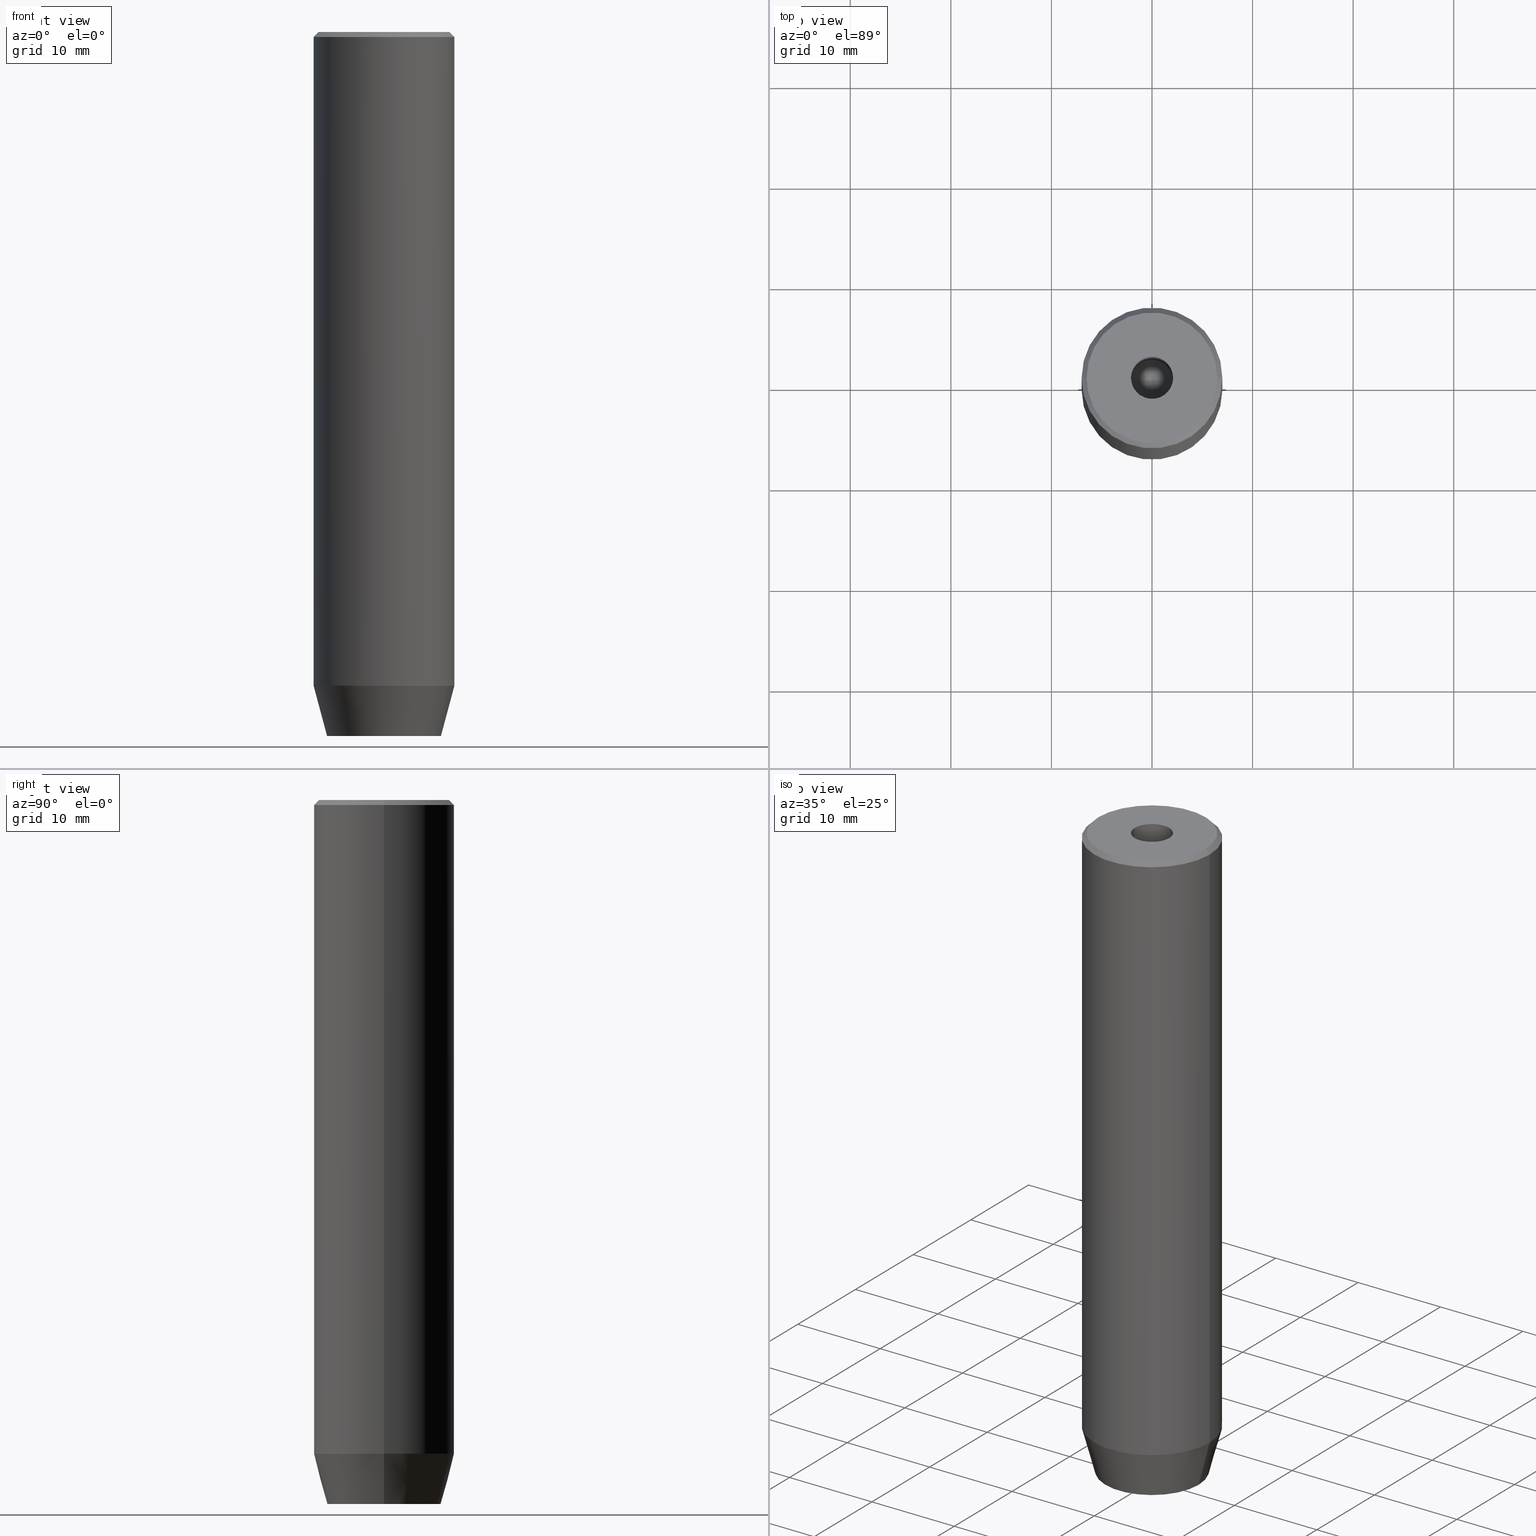
[diagram: canonical four-view strip — front | top / right | iso, engineering-drawing reading convention]
A machine part, canonical four-view strip (front | top / right | iso — engineering-drawing reading convention). The complete STEP part file that produces these views, byte-faithful:
ISO-10303-21;
HEADER;
FILE_DESCRIPTION (( 'STEP AP203' ),
    '1' );
FILE_NAME ('c9f8.STEP',
    '2024-01-02T21:54:03',
    ( '' ),
    ( '' ),
    'SwSTEP 2.0',
    'SolidWorks 2019',
    '' );
FILE_SCHEMA (( 'CONFIG_CONTROL_DESIGN' ));
ENDSEC;

DATA;
#1 = VECTOR ( 'NONE', #399, 1000.000000000000000 ) ;
#2 = COORDINATED_UNIVERSAL_TIME_OFFSET ( 1, 0, .AHEAD. ) ;
#3 = ORIENTED_EDGE ( 'NONE', *, *, #412, .F. ) ;
#4 = CARTESIAN_POINT ( 'NONE',  ( -2.099999999999996980, 2.571758278209438013E-16, -15.00000000000000000 ) ) ;
#5 = EDGE_LOOP ( 'NONE', ( #406, #281 ) ) ;
#6 = APPROVAL_STATUS ( 'not_yet_approved' ) ;
#7 = CARTESIAN_POINT ( 'NONE',  ( -6.500000000000012434, 0.000000000000000000, 0.000000000000000000 ) ) ;
#8 = ORIENTED_EDGE ( 'NONE', *, *, #316, .F. ) ;
#9 = DIRECTION ( 'NONE',  ( 0.000000000000000000, 0.000000000000000000, 1.000000000000000000 ) ) ;
#10 = EDGE_CURVE ( 'NONE', #421, #469, #246, .T. ) ;
#11 = ORIENTED_EDGE ( 'NONE', *, *, #283, .F. ) ;
#12 = VECTOR ( 'NONE', #81, 1000.000000000000000 ) ;
#13 = DIRECTION ( 'NONE',  ( -0.8571673007021113344, 1.049727191138617463E-16, 0.5150380749100558209 ) ) ;
#14 = DIRECTION ( 'NONE',  ( 0.000000000000000000, 0.000000000000000000, -1.000000000000000000 ) ) ;
#15 = DATE_AND_TIME ( #285, #493 ) ;
#16 = ORIENTED_EDGE ( 'NONE', *, *, #352, .T. ) ;
#17 = PRODUCT_RELATED_PRODUCT_CATEGORY ( 'detail', '', ( #527 ) ) ;
#18 = CARTESIAN_POINT ( 'NONE',  ( 0.000000000000000000, 0.000000000000000000, 0.000000000000000000 ) ) ;
#19 = VERTEX_POINT ( 'NONE', #219 ) ;
#20 = CARTESIAN_POINT ( 'NONE',  ( -1.249999999999999556, -2.165063509461096825, -67.20000000000000284 ) ) ;
#21 = EDGE_CURVE ( 'NONE', #330, #90, #259, .T. ) ;
#22 = VERTEX_POINT ( 'NONE', #397 ) ;
#23 = LINE ( 'NONE', #250, #503 ) ;
#24 = CIRCLE ( 'NONE', #50, 7.000000000000000000 ) ;
#25 = APPROVAL_PERSON_ORGANIZATION ( #97, #76, #321 ) ;
#26 = DATE_AND_TIME ( #213, #235 ) ;
#27 = LINE ( 'NONE', #518, #205 ) ;
#28 = CARTESIAN_POINT ( 'NONE',  ( -2.500000000000000444, 1.443375672974064772, -67.20000000000000284 ) ) ;
#29 = DIRECTION ( 'NONE',  ( -0.000000000000000000, -0.000000000000000000, 1.000000000000000000 ) ) ;
#30 = EDGE_CURVE ( 'NONE', #95, #49, #307, .T. ) ;
#31 = LINE ( 'NONE', #434, #119 ) ;
#32 = FACE_OUTER_BOUND ( 'NONE', #547, .T. ) ;
#33 = CIRCLE ( 'NONE', #314, 7.000000000000000000 ) ;
#34 = DIRECTION ( 'NONE',  ( -0.2588190451025211836, 3.169619151431770488E-17, 0.9659258262890680902 ) ) ;
#35 = CC_DESIGN_PERSON_AND_ORGANIZATION_ASSIGNMENT ( #376, #557, ( #195 ) ) ;
#36 = VERTEX_POINT ( 'NONE', #242 ) ;
#37 = PLANE ( 'NONE',  #243 ) ;
#38 = EDGE_CURVE ( 'NONE', #54, #403, #334, .T. ) ;
#39 = LINE ( 'NONE', #574, #88 ) ;
#40 = AXIS2_PLACEMENT_3D ( 'NONE', #231, #268, #176 ) ;
#41 = CC_DESIGN_APPROVAL ( #76, ( #195 ) ) ;
#42 = DIRECTION ( 'NONE',  ( 0.000000000000000000, 0.000000000000000000, -1.000000000000000000 ) ) ;
#43 = DIRECTION ( 'NONE',  ( 1.000000000000000000, 0.000000000000000000, 0.000000000000000000 ) ) ;
#44 = EDGE_CURVE ( 'NONE', #421, #151, #587, .T. ) ;
#45 = PLANE ( 'NONE',  #233 ) ;
#46 = VERTEX_POINT ( 'NONE', #575 ) ;
#47 = DIRECTION ( 'NONE',  ( 1.000000000000000000, 0.000000000000000000, 0.000000000000000000 ) ) ;
#48 = CARTESIAN_POINT ( 'NONE',  ( 0.000000000000000000, 0.000000000000000000, 0.000000000000000000 ) ) ;
#49 = VERTEX_POINT ( 'NONE', #423 ) ;
#50 = AXIS2_PLACEMENT_3D ( 'NONE', #404, #486, #43 ) ;
#51 = LOCAL_TIME ( 22, 54, 3.000000000000000000, #515 ) ;
#52 = VERTEX_POINT ( 'NONE', #508 ) ;
#53 = ADVANCED_FACE ( 'NONE', ( #126 ), #105, .F. ) ;
#54 = VERTEX_POINT ( 'NONE', #484 ) ;
#55 = PERSON_AND_ORGANIZATION_ROLE ( 'creator' ) ;
#56 = ORIENTED_EDGE ( 'NONE', *, *, #216, .F. ) ;
#57 = LINE ( 'NONE', #292, #194 ) ;
#58 = DIRECTION ( 'NONE',  ( -0.000000000000000000, 0.000000000000000000, -1.000000000000000000 ) ) ;
#59 = APPROVAL_STATUS ( 'not_yet_approved' ) ;
#60 = ORIENTED_EDGE ( 'NONE', *, *, #91, .F. ) ;
#61 = AXIS2_PLACEMENT_3D ( 'NONE', #171, #211, #257 ) ;
#62 = ORIENTED_EDGE ( 'NONE', *, *, #152, .T. ) ;
#63 = MANIFOLD_SOLID_BREP ( 'Vrt�k z�vitn�ku pro M5 z�vit1', #214 ) ;
#64 = PERSON_AND_ORGANIZATION ( #324, #300 ) ;
#65 = ORIENTED_EDGE ( 'NONE', *, *, #398, .F. ) ;
#66 = ADVANCED_FACE ( 'NONE', ( #288 ), #201, .F. ) ;
#67 = EDGE_LOOP ( 'NONE', ( #340, #322 ) ) ;
#68 = CARTESIAN_POINT ( 'NONE',  ( 0.000000000000000000, 0.000000000000000000, -65.00000000000000000 ) ) ;
#69 = LINE ( 'NONE', #345, #361 ) ;
#70 = AXIS2_PLACEMENT_3D ( 'NONE', #175, #301, #258 ) ;
#71 = DIRECTION ( 'NONE',  ( -0.000000000000000000, -0.000000000000000000, 1.000000000000000000 ) ) ;
#72 = DIRECTION ( 'NONE',  ( 1.000000000000000000, 0.000000000000000000, 0.000000000000000000 ) ) ;
#73 = ADVANCED_FACE ( 'NONE', ( #120, #468 ), #380, .T. ) ;
#74 = CARTESIAN_POINT ( 'NONE',  ( -1.084202172485504434E-16, 2.886751345948129543, -67.20000000000000284 ) ) ;
#75 = DIRECTION ( 'NONE',  ( -0.000000000000000000, -0.000000000000000000, 1.000000000000000000 ) ) ;
#76 = APPROVAL ( #59, 'NEUR�EN�' ) ;
#77 = DIRECTION ( 'NONE',  ( 1.000000000000000000, 0.000000000000000000, 0.000000000000000000 ) ) ;
#78 = CARTESIAN_POINT ( 'NONE',  ( -6.500000000000012434, 0.000000000000000000, 0.000000000000000000 ) ) ;
#79 = AXIS2_PLACEMENT_3D ( 'NONE', #18, #532, #390 ) ;
#80 = CONICAL_SURFACE ( 'NONE', #61, 2.099999999999996980, 1.029744258676652535 ) ;
#81 = DIRECTION ( 'NONE',  ( 0.8660254037844385966, -0.5000000000000001110, 0.000000000000000000 ) ) ;
#82 = CC_DESIGN_PERSON_AND_ORGANIZATION_ASSIGNMENT ( #144, #55, ( #405 ) ) ;
#83 = DIRECTION ( 'NONE',  ( 0.2588190451025211836, 0.000000000000000000, 0.9659258262890680902 ) ) ;
#84 = CARTESIAN_POINT ( 'NONE',  ( 2.099999999999996980, 0.000000000000000000, -15.00000000000000000 ) ) ;
#85 = CARTESIAN_POINT ( 'NONE',  ( -1.250000000000000444, 2.165063509461097269, -67.20000000000000284 ) ) ;
#86 = CARTESIAN_POINT ( 'NONE',  ( 0.000000000000000000, 0.000000000000000000, -65.00000000000000000 ) ) ;
#87 = VECTOR ( 'NONE', #13, 1000.000000000000000 ) ;
#88 = VECTOR ( 'NONE', #221, 1000.000000000000000 ) ;
#89 = DIRECTION ( 'NONE',  ( -0.000000000000000000, -0.000000000000000000, 1.000000000000000000 ) ) ;
#90 = VERTEX_POINT ( 'NONE', #168 ) ;
#91 = EDGE_CURVE ( 'NONE', #157, #234, #526, .T. ) ;
#92 = FACE_OUTER_BOUND ( 'NONE', #93, .T. ) ;
#93 = EDGE_LOOP ( 'NONE', ( #464, #284, #560, #338 ) ) ;
#94 = DIRECTION ( 'NONE',  ( 1.000000000000000000, 0.000000000000000000, 0.000000000000000000 ) ) ;
#95 = VERTEX_POINT ( 'NONE', #129 ) ;
#96 = AXIS2_PLACEMENT_3D ( 'NONE', #400, #313, #47 ) ;
#97 = PERSON_AND_ORGANIZATION ( #324, #300 ) ;
#98 = ADVANCED_FACE ( 'NONE', ( #32 ), #217, .T. ) ;
#99 = ORIENTED_EDGE ( 'NONE', *, *, #498, .T. ) ;
#100 = APPROVAL_DATE_TIME ( #546, #173 ) ;
#101 = CARTESIAN_POINT ( 'NONE',  ( 0.000000000000000000, 0.000000000000000000, -65.00000000000000000 ) ) ;
#102 = ORIENTED_EDGE ( 'NONE', *, *, #555, .T. ) ;
#103 = APPLICATION_PROTOCOL_DEFINITION ( 'international standard', 'config_control_design', 1994, #490 ) ;
#104 = VERTEX_POINT ( 'NONE', #349 ) ;
#105 = CYLINDRICAL_SURFACE ( 'NONE', #79, 2.099999999999997868 ) ;
#106 = EDGE_CURVE ( 'NONE', #190, #403, #530, .T. ) ;
#107 = PERSON_AND_ORGANIZATION ( #324, #300 ) ;
#108 = VECTOR ( 'NONE', #343, 1000.000000000000000 ) ;
#109 = ORIENTED_EDGE ( 'NONE', *, *, #337, .T. ) ;
#110 = CONICAL_SURFACE ( 'NONE', #121, 7.000000000000000000, 0.2617993877991499074 ) ;
#111 = DIRECTION ( 'NONE',  ( 0.000000000000000000, 0.000000000000000000, 1.000000000000000000 ) ) ;
#112 = APPROVAL_PERSON_ORGANIZATION ( #141, #173, #150 ) ;
#113 = SHAPE_DEFINITION_REPRESENTATION ( #165, #353 ) ;
#114 = ORIENTED_EDGE ( 'NONE', *, *, #106, .F. ) ;
#115 = FACE_OUTER_BOUND ( 'NONE', #143, .T. ) ;
#116 = ORIENTED_EDGE ( 'NONE', *, *, #329, .T. ) ;
#117 = CARTESIAN_POINT ( 'NONE',  ( -1.084202172485504434E-16, 2.886751345948129543, -67.20000000000000284 ) ) ;
#118 = FACE_OUTER_BOUND ( 'NONE', #385, .T. ) ;
#119 = VECTOR ( 'NONE', #34, 1000.000000000000114 ) ;
#120 = FACE_BOUND ( 'NONE', #381, .T. ) ;
#121 = AXIS2_PLACEMENT_3D ( 'NONE', #68, #430, #538 ) ;
#122 = ADVANCED_FACE ( 'NONE', ( #351 ), #45, .F. ) ;
#123 = LINE ( 'NONE', #164, #445 ) ;
#124 = CARTESIAN_POINT ( 'NONE',  ( 7.000000000000000000, 0.000000000000000000, 0.000000000000000000 ) ) ;
#125 = DIRECTION ( 'NONE',  ( 1.000000000000000000, 0.000000000000000000, 0.000000000000000000 ) ) ;
#126 = FACE_OUTER_BOUND ( 'NONE', #240, .T. ) ;
#127 = CC_DESIGN_PERSON_AND_ORGANIZATION_ASSIGNMENT ( #107, #548, ( #527 ) ) ;
#128 = DIRECTION ( 'NONE',  ( -0.8660254037844387076, -0.5000000000000001110, 0.000000000000000000 ) ) ;
#129 = CARTESIAN_POINT ( 'NONE',  ( -2.500000000000000444, -1.443375672974064328, -67.20000000000000284 ) ) ;
#130 = AXIS2_PLACEMENT_3D ( 'NONE', #302, #218, #125 ) ;
#131 = CIRCLE ( 'NONE', #524, 2.099999999999998757 ) ;
#132 = CYLINDRICAL_SURFACE ( 'NONE', #550, 7.000000000000000000 ) ;
#133 = CARTESIAN_POINT ( 'NONE',  ( 0.000000000000000000, 0.000000000000000000, 0.000000000000000000 ) ) ;
#134 = DIRECTION ( 'NONE',  ( 0.000000000000000000, -1.000000000000000000, 0.000000000000000000 ) ) ;
#135 = EDGE_CURVE ( 'NONE', #330, #157, #265, .T. ) ;
#136 = AXIS2_PLACEMENT_3D ( 'NONE', #203, #414, #287 ) ;
#137 = ORIENTED_EDGE ( 'NONE', *, *, #555, .F. ) ;
#138 = SECURITY_CLASSIFICATION ( '', '', #154 ) ;
#139 = FACE_OUTER_BOUND ( 'NONE', #395, .T. ) ;
#140 = ORIENTED_EDGE ( 'NONE', *, *, #528, .T. ) ;
#141 = PERSON_AND_ORGANIZATION ( #324, #300 ) ;
#142 = DIRECTION ( 'NONE',  ( -0.000000000000000000, -0.000000000000000000, 1.000000000000000000 ) ) ;
#143 = EDGE_LOOP ( 'NONE', ( #364, #212, #202, #140 ) ) ;
#144 = PERSON_AND_ORGANIZATION ( #324, #300 ) ;
#145 = EDGE_CURVE ( 'NONE', #52, #190, #455, .T. ) ;
#146 = VERTEX_POINT ( 'NONE', #544 ) ;
#147 = FACE_OUTER_BOUND ( 'NONE', #237, .T. ) ;
#148 = PLANE ( 'NONE',  #571 ) ;
#149 = ORIENTED_EDGE ( 'NONE', *, *, #44, .T. ) ;
#150 = APPROVAL_ROLE ( '' ) ;
#151 = VERTEX_POINT ( 'NONE', #263 ) ;
#152 = EDGE_CURVE ( 'NONE', #104, #303, #441, .T. ) ;
#153 = VERTEX_POINT ( 'NONE', #333 ) ;
#154 = SECURITY_CLASSIFICATION_LEVEL ( 'unclassified' ) ;
#155 = ORIENTED_EDGE ( 'NONE', *, *, #225, .T. ) ;
#156 = CARTESIAN_POINT ( 'NONE',  ( 2.099999999999997868, 0.000000000000000000, 0.000000000000000000 ) ) ;
#157 = VERTEX_POINT ( 'NONE', #378 ) ;
#158 = VECTOR ( 'NONE', #432, 1000.000000000000114 ) ;
#159 = DIRECTION ( 'NONE',  ( 0.000000000000000000, 0.000000000000000000, -1.000000000000000000 ) ) ;
#160 = CONICAL_SURFACE ( 'NONE', #224, 6.500000000000012434, 0.7853981633974447263 ) ;
#161 = ORIENTED_EDGE ( 'NONE', *, *, #216, .T. ) ;
#162 = FACE_OUTER_BOUND ( 'NONE', #196, .T. ) ;
#163 = EDGE_CURVE ( 'NONE', #19, #146, #57, .T. ) ;
#164 = CARTESIAN_POINT ( 'NONE',  ( -2.500000000000000444, 0.000000000000000000, -67.20000000000000284 ) ) ;
#165 = PRODUCT_DEFINITION_SHAPE ( 'NONE', 'NONE',  #405 ) ;
#166 = CARTESIAN_POINT ( 'NONE',  ( 5.660254037844382857, 0.000000000000000000, -70.00000000000000000 ) ) ;
#167 = VECTOR ( 'NONE', #387, 1000.000000000000000 ) ;
#168 = CARTESIAN_POINT ( 'NONE',  ( -5.660254037844382857, 7.752169791919238770E-16, -70.00000000000000000 ) ) ;
#169 = LOCAL_TIME ( 22, 54, 3.000000000000000000, #2 ) ;
#170 = APPROVAL_DATE_TIME ( #391, #442 ) ;
#171 = CARTESIAN_POINT ( 'NONE',  ( 0.000000000000000000, 0.000000000000000000, -15.00000000000000000 ) ) ;
#172 = DIRECTION ( 'NONE',  ( -1.000000000000000000, 0.000000000000000000, -0.000000000000000000 ) ) ;
#173 = APPROVAL ( #6, 'NEUR�EN�' ) ;
#174 = LINE ( 'NONE', #350, #551 ) ;
#175 = CARTESIAN_POINT ( 'NONE',  ( 0.000000000000000000, 5.660254037844382857, -70.00000000000000000 ) ) ;
#176 = DIRECTION ( 'NONE',  ( -0.8660254037844385966, 0.5000000000000001110, 0.000000000000000000 ) ) ;
#177 = AXIS2_PLACEMENT_3D ( 'NONE', #48, #142, #312 ) ;
#178 = CARTESIAN_POINT ( 'NONE',  ( 2.099999999999998757, 0.000000000000000000, -1.990051048614449116E-16 ) ) ;
#179 = DIRECTION ( 'NONE',  ( 1.000000000000000000, 0.000000000000000000, 0.000000000000000000 ) ) ;
#180 = ADVANCED_FACE ( 'NONE', ( #369 ), #502, .F. ) ;
#181 = EDGE_LOOP ( 'NONE', ( #359, #450, #56, #193 ) ) ;
#182 = CARTESIAN_POINT ( 'NONE',  ( 0.000000000000000000, 0.000000000000000000, 0.000000000000000000 ) ) ;
#183 = UNCERTAINTY_MEASURE_WITH_UNIT (LENGTH_MEASURE( 1.000000000000000082E-05 ), #509, 'distance_accuracy_value', 'NONE');
#184 = CARTESIAN_POINT ( 'NONE',  ( 7.000000000000000000, 0.000000000000000000, -65.00000000000000000 ) ) ;
#185 = AXIS2_PLACEMENT_3D ( 'NONE', #282, #328, #94 ) ;
#186 = ORIENTED_EDGE ( 'NONE', *, *, #30, .F. ) ;
#187 = ADVANCED_FACE ( 'NONE', ( #511 ), #401, .T. ) ;
#188 = ORIENTED_EDGE ( 'NONE', *, *, #44, .F. ) ;
#189 = CARTESIAN_POINT ( 'NONE',  ( -1.250000000000000444, 2.165063509461097269, -67.20000000000000284 ) ) ;
#190 = VERTEX_POINT ( 'NONE', #7 ) ;
#191 = DIRECTION ( 'NONE',  ( 0.000000000000000000, -1.000000000000000000, 0.000000000000000000 ) ) ;
#192 = FACE_OUTER_BOUND ( 'NONE', #539, .T. ) ;
#193 = ORIENTED_EDGE ( 'NONE', *, *, #135, .F. ) ;
#194 = VECTOR ( 'NONE', #558, 1000.000000000000000 ) ;
#195 = PRODUCT_DEFINITION_FORMATION_WITH_SPECIFIED_SOURCE ( 'LIBOVOLN�', '', #527, .NOT_KNOWN. ) ;
#196 = EDGE_LOOP ( 'NONE', ( #410, #279, #336, #114 ) ) ;
#197 = ORIENTED_EDGE ( 'NONE', *, *, #152, .F. ) ;
#198 = PERSON_AND_ORGANIZATION_ROLE ( 'creator' ) ;
#199 = ORIENTED_EDGE ( 'NONE', *, *, #337, .F. ) ;
#200 = ADVANCED_FACE ( 'NONE', ( #192 ), #466, .F. ) ;
#201 = PLANE ( 'NONE',  #325 ) ;
#202 = ORIENTED_EDGE ( 'NONE', *, *, #91, .T. ) ;
#203 = CARTESIAN_POINT ( 'NONE',  ( 0.000000000000000000, 0.000000000000000000, -65.00000000000000000 ) ) ;
#204 = ORIENTED_EDGE ( 'NONE', *, *, #456, .F. ) ;
#205 = VECTOR ( 'NONE', #483, 1000.000000000000114 ) ;
#206 = CYLINDRICAL_SURFACE ( 'NONE', #419, 7.000000000000000000 ) ;
#207 = ADVANCED_FACE ( 'NONE', ( #549 ), #148, .F. ) ;
#208 = CALENDAR_DATE ( 2024, 2, 1 ) ;
#209 = DIRECTION ( 'NONE',  ( -0.000000000000000000, -0.000000000000000000, 1.000000000000000000 ) ) ;
#210 = CC_DESIGN_PERSON_AND_ORGANIZATION_ASSIGNMENT ( #64, #198, ( #195 ) ) ;
#211 = DIRECTION ( 'NONE',  ( -0.000000000000000000, -0.000000000000000000, 1.000000000000000000 ) ) ;
#212 = ORIENTED_EDGE ( 'NONE', *, *, #412, .T. ) ;
#213 = CALENDAR_DATE ( 2024, 2, 1 ) ;
#214 = CLOSED_SHELL ( 'NONE', ( #271, #200, #244, #388, #422, #73, #475, #310, #187, #542, #585, #207, #180, #122, #66, #482, #98, #251, #53 ) ) ;
#215 = LINE ( 'NONE', #394, #167 ) ;
#216 = EDGE_CURVE ( 'NONE', #157, #54, #33, .T. ) ;
#217 = PLANE ( 'NONE',  #392 ) ;
#218 = DIRECTION ( 'NONE',  ( -0.000000000000000000, -0.000000000000000000, 1.000000000000000000 ) ) ;
#219 = CARTESIAN_POINT ( 'NONE',  ( 0.000000000000000000, -2.886751345948128211, -67.20000000000000284 ) ) ;
#220 = LINE ( 'NONE', #360, #522 ) ;
#221 = DIRECTION ( 'NONE',  ( -0.000000000000000000, -0.000000000000000000, -1.000000000000000000 ) ) ;
#222 = DIRECTION ( 'NONE',  ( 0.8660254037844385966, 0.5000000000000001110, 0.000000000000000000 ) ) ;
#223 = VECTOR ( 'NONE', #83, 1000.000000000000114 ) ;
#224 = AXIS2_PLACEMENT_3D ( 'NONE', #488, #42, #446 ) ;
#225 = EDGE_CURVE ( 'NONE', #46, #151, #418, .T. ) ;
#226 = CARTESIAN_POINT ( 'NONE',  ( -2.099999999999998757, 2.571758278209439985E-16, -1.990051048614449116E-16 ) ) ;
#227 = DESIGN_CONTEXT ( 'detailed design', #566, 'design' ) ;
#228 = ORIENTED_EDGE ( 'NONE', *, *, #316, .T. ) ;
#229 = LINE ( 'NONE', #541, #384 ) ;
#230 = ORIENTED_EDGE ( 'NONE', *, *, #347, .F. ) ;
#231 = CARTESIAN_POINT ( 'NONE',  ( 1.250000000000000222, 2.165063509461096825, -67.20000000000000284 ) ) ;
#232 = EDGE_CURVE ( 'NONE', #52, #234, #27, .T. ) ;
#233 = AXIS2_PLACEMENT_3D ( 'NONE', #584, #489, #319 ) ;
#234 = VERTEX_POINT ( 'NONE', #427 ) ;
#235 = LOCAL_TIME ( 22, 54, 3.000000000000000000, #481 ) ;
#236 = DIRECTION ( 'NONE',  ( 1.000000000000000000, 0.000000000000000000, 0.000000000000000000 ) ) ;
#237 = EDGE_LOOP ( 'NONE', ( #116, #8, #197, #586 ) ) ;
#238 = CARTESIAN_POINT ( 'NONE',  ( 0.000000000000000000, 0.000000000000000000, -1.990051048614449116E-16 ) ) ;
#239 = ORIENTED_EDGE ( 'NONE', *, *, #537, .T. ) ;
#240 = EDGE_LOOP ( 'NONE', ( #65, #188, #371, #480 ) ) ;
#241 = DIRECTION ( 'NONE',  ( 0.8660254037844387076, -0.4999999999999998890, 0.000000000000000000 ) ) ;
#242 = CARTESIAN_POINT ( 'NONE',  ( -2.500000000000000444, 1.443375672974064772, -70.00000000000000000 ) ) ;
#243 = AXIS2_PLACEMENT_3D ( 'NONE', #133, #443, #583 ) ;
#244 = ADVANCED_FACE ( 'NONE', ( #162 ), #447, .T. ) ;
#245 = ORIENTED_EDGE ( 'NONE', *, *, #498, .F. ) ;
#246 = LINE ( 'NONE', #156, #436 ) ;
#247 = ORIENTED_EDGE ( 'NONE', *, *, #448, .T. ) ;
#248 = PERSON_AND_ORGANIZATION_ROLE ( 'classification_officer' ) ;
#249 = ORIENTED_EDGE ( 'NONE', *, *, #456, .T. ) ;
#250 = CARTESIAN_POINT ( 'NONE',  ( -2.500000000000000444, 0.000000000000000000, -70.00000000000000000 ) ) ;
#251 = ADVANCED_FACE ( 'NONE', ( #342 ), #80, .F. ) ;
#252 = CIRCLE ( 'NONE', #561, 2.099999999999998757 ) ;
#253 = CARTESIAN_POINT ( 'NONE',  ( 0.000000000000000000, 0.000000000000000000, 0.000000000000000000 ) ) ;
#254 = LINE ( 'NONE', #520, #577 ) ;
#255 = DIRECTION ( 'NONE',  ( 1.000000000000000000, 0.000000000000000000, -0.000000000000000000 ) ) ;
#256 = EDGE_CURVE ( 'NONE', #190, #52, #261, .T. ) ;
#257 = DIRECTION ( 'NONE',  ( 1.000000000000000000, 0.000000000000000000, 0.000000000000000000 ) ) ;
#258 = DIRECTION ( 'NONE',  ( -1.000000000000000000, 0.000000000000000000, -0.000000000000000000 ) ) ;
#259 = CIRCLE ( 'NONE', #444, 5.660254037844382857 ) ;
#260 = CARTESIAN_POINT ( 'NONE',  ( -1.249999999999999556, -2.165063509461096825, -67.20000000000000284 ) ) ;
#261 = CIRCLE ( 'NONE', #130, 6.500000000000012434 ) ;
#262 = FACE_OUTER_BOUND ( 'NONE', #67, .T. ) ;
#263 = CARTESIAN_POINT ( 'NONE',  ( -2.099999999999996980, 2.571758278209438013E-16, -15.00000000000000000 ) ) ;
#264 = LINE ( 'NONE', #576, #533 ) ;
#265 = LINE ( 'NONE', #184, #223 ) ;
#266 = EDGE_CURVE ( 'NONE', #49, #36, #23, .T. ) ;
#267 = CARTESIAN_POINT ( 'NONE',  ( 0.000000000000000000, 0.000000000000000000, -0.4999999999999908962 ) ) ;
#268 = DIRECTION ( 'NONE',  ( 0.5000000000000001110, 0.8660254037844385966, -0.000000000000000000 ) ) ;
#269 = EDGE_LOOP ( 'NONE', ( #417, #186, #506, #374 ) ) ;
#270 = CARTESIAN_POINT ( 'NONE',  ( -7.000000000000000000, 8.572527594031473190E-16, -0.4999999999999908962 ) ) ;
#271 = ADVANCED_FACE ( 'NONE', ( #118 ), #305, .F. ) ;
#272 = ORIENTED_EDGE ( 'NONE', *, *, #431, .T. ) ;
#273 = DIRECTION ( 'NONE',  ( -0.000000000000000000, -0.000000000000000000, 1.000000000000000000 ) ) ;
#274 = CARTESIAN_POINT ( 'NONE',  ( -2.500000000000000444, 0.000000000000000000, -67.20000000000000284 ) ) ;
#275 = VECTOR ( 'NONE', #435, 1000.000000000000000 ) ;
#276 = ORIENTED_EDGE ( 'NONE', *, *, #294, .T. ) ;
#277 = CARTESIAN_POINT ( 'NONE',  ( 2.500000000000000000, 1.443375672974064328, -70.00000000000000000 ) ) ;
#278 = DIRECTION ( 'NONE',  ( -0.4999999999999998890, -0.8660254037844387076, 0.000000000000000000 ) ) ;
#279 = ORIENTED_EDGE ( 'NONE', *, *, #232, .T. ) ;
#280 = APPROVAL_DATE_TIME ( #15, #76 ) ;
#281 = ORIENTED_EDGE ( 'NONE', *, *, #438, .F. ) ;
#282 = CARTESIAN_POINT ( 'NONE',  ( 0.000000000000000000, 0.000000000000000000, -15.00000000000000000 ) ) ;
#283 = EDGE_CURVE ( 'NONE', #90, #54, #31, .T. ) ;
#284 = ORIENTED_EDGE ( 'NONE', *, *, #256, .F. ) ;
#285 = CALENDAR_DATE ( 2024, 2, 1 ) ;
#286 = ORIENTED_EDGE ( 'NONE', *, *, #304, .T. ) ;
#287 = DIRECTION ( 'NONE',  ( 1.000000000000000000, 0.000000000000000000, 0.000000000000000000 ) ) ;
#288 = FACE_OUTER_BOUND ( 'NONE', #505, .T. ) ;
#289 = VECTOR ( 'NONE', #439, 1000.000000000000114 ) ;
#290 = PERSON_AND_ORGANIZATION ( #324, #300 ) ;
#291 = VERTEX_POINT ( 'NONE', #567 ) ;
#292 = CARTESIAN_POINT ( 'NONE',  ( 0.000000000000000000, -2.886751345948128211, -67.20000000000000284 ) ) ;
#293 = ORIENTED_EDGE ( 'NONE', *, *, #491, .T. ) ;
#294 = EDGE_CURVE ( 'NONE', #95, #104, #123, .T. ) ;
#295 = DIRECTION ( 'NONE',  ( -0.000000000000000000, -0.000000000000000000, -1.000000000000000000 ) ) ;
#296 = ORIENTED_EDGE ( 'NONE', *, *, #517, .F. ) ;
#297 = LINE ( 'NONE', #28, #383 ) ;
#298 = AXIS2_PLACEMENT_3D ( 'NONE', #86, #440, #402 ) ;
#299 = DIRECTION ( 'NONE',  ( 1.000000000000000000, 0.000000000000000000, 0.000000000000000000 ) ) ;
#300 = ORGANIZATION ( 'NEUR�EN�', 'NEUR�EN�', '' ) ;
#301 = DIRECTION ( 'NONE',  ( 0.000000000000000000, 0.000000000000000000, -1.000000000000000000 ) ) ;
#302 = CARTESIAN_POINT ( 'NONE',  ( 0.000000000000000000, 0.000000000000000000, 0.000000000000000000 ) ) ;
#303 = VERTEX_POINT ( 'NONE', #74 ) ;
#304 = EDGE_CURVE ( 'NONE', #46, #421, #569, .T. ) ;
#305 = CYLINDRICAL_SURFACE ( 'NONE', #344, 2.099999999999997868 ) ;
#306 = CARTESIAN_POINT ( 'NONE',  ( 0.000000000000000000, 0.000000000000000000, -1.990051048614449116E-16 ) ) ;
#307 = LINE ( 'NONE', #478, #108 ) ;
#308 = CC_DESIGN_SECURITY_CLASSIFICATION ( #138, ( #195 ) ) ;
#309 = LINE ( 'NONE', #487, #12 ) ;
#310 = ADVANCED_FACE ( 'NONE', ( #115 ), #206, .T. ) ;
#311 = PLANE ( 'NONE',  #40 ) ;
#312 = DIRECTION ( 'NONE',  ( 1.000000000000000000, 0.000000000000000000, 0.000000000000000000 ) ) ;
#313 = DIRECTION ( 'NONE',  ( -0.000000000000000000, -0.000000000000000000, 1.000000000000000000 ) ) ;
#314 = AXIS2_PLACEMENT_3D ( 'NONE', #101, #382, #236 ) ;
#315 = CC_DESIGN_APPROVAL ( #442, ( #138 ) ) ;
#316 = EDGE_CURVE ( 'NONE', #303, #291, #339, .T. ) ;
#317 = EDGE_LOOP ( 'NONE', ( #11, #109, #424, #3 ) ) ;
#318 = DIRECTION ( 'NONE',  ( -0.000000000000000000, -0.000000000000000000, 1.000000000000000000 ) ) ;
#319 = DIRECTION ( 'NONE',  ( 0.8660254037844385966, 0.4999999999999999445, 0.000000000000000000 ) ) ;
#320 = ORIENTED_EDGE ( 'NONE', *, *, #30, .T. ) ;
#321 = APPROVAL_ROLE ( '' ) ;
#322 = ORIENTED_EDGE ( 'NONE', *, *, #145, .T. ) ;
#323 = CALENDAR_DATE ( 2024, 2, 1 ) ;
#324 = PERSON ( 'NEUR�EN�', 'NEUR�EN�', 'NEUR�EN�', ('NEUR�EN�'), ('NEUR�EN�'), ('NEUR�EN�') ) ;
#325 = AXIS2_PLACEMENT_3D ( 'NONE', #570, #255, #58 ) ;
#326 = VECTOR ( 'NONE', #222, 1000.000000000000000 ) ;
#327 = ORIENTED_EDGE ( 'NONE', *, *, #266, .F. ) ;
#328 = DIRECTION ( 'NONE',  ( -0.000000000000000000, -0.000000000000000000, 1.000000000000000000 ) ) ;
#329 = EDGE_CURVE ( 'NONE', #36, #291, #215, .T. ) ;
#330 = VERTEX_POINT ( 'NONE', #166 ) ;
#331 = COORDINATED_UNIVERSAL_TIME_OFFSET ( 1, 0, .AHEAD. ) ;
#332 = ORIENTED_EDGE ( 'NONE', *, *, #163, .F. ) ;
#333 = CARTESIAN_POINT ( 'NONE',  ( 2.500000000000000000, -1.443375672974064106, -70.00000000000000000 ) ) ;
#334 = LINE ( 'NONE', #559, #428 ) ;
#335 = PLANE ( 'NONE',  #457 ) ;
#336 = ORIENTED_EDGE ( 'NONE', *, *, #448, .F. ) ;
#337 = EDGE_CURVE ( 'NONE', #90, #330, #408, .T. ) ;
#338 = ORIENTED_EDGE ( 'NONE', *, *, #528, .F. ) ;
#339 = LINE ( 'NONE', #117, #370 ) ;
#340 = ORIENTED_EDGE ( 'NONE', *, *, #256, .T. ) ;
#341 = DIRECTION ( 'NONE',  ( 0.8571673007021113344, 0.000000000000000000, 0.5150380749100558209 ) ) ;
#342 = FACE_OUTER_BOUND ( 'NONE', #510, .T. ) ;
#343 = DIRECTION ( 'NONE',  ( -0.000000000000000000, -0.000000000000000000, -1.000000000000000000 ) ) ;
#344 = AXIS2_PLACEMENT_3D ( 'NONE', #479, #209, #396 ) ;
#345 = CARTESIAN_POINT ( 'NONE',  ( -1.249999999999999556, -2.165063509461096825, -70.00000000000000000 ) ) ;
#346 = DIRECTION ( 'NONE',  ( -0.000000000000000000, -0.000000000000000000, 1.000000000000000000 ) ) ;
#347 = EDGE_CURVE ( 'NONE', #303, #22, #254, .T. ) ;
#348 = DIRECTION ( 'NONE',  ( -0.000000000000000000, -0.000000000000000000, 1.000000000000000000 ) ) ;
#349 = CARTESIAN_POINT ( 'NONE',  ( -2.500000000000000444, 1.443375672974064772, -67.20000000000000284 ) ) ;
#350 = CARTESIAN_POINT ( 'NONE',  ( 2.500000000000000000, 0.000000000000000000, -67.20000000000000284 ) ) ;
#351 = FACE_OUTER_BOUND ( 'NONE', #366, .T. ) ;
#352 = EDGE_CURVE ( 'NONE', #19, #95, #514, .T. ) ;
#353 = ADVANCED_BREP_SHAPE_REPRESENTATION ( 'c9f8', ( #63, #393 ), #523 ) ;
#354 = DIRECTION ( 'NONE',  ( 1.000000000000000000, 0.000000000000000000, 0.000000000000000000 ) ) ;
#355 = CIRCLE ( 'NONE', #96, 2.099999999999996980 ) ;
#356 = APPROVAL_PERSON_ORGANIZATION ( #519, #442, #568 ) ;
#357 = DIRECTION ( 'NONE',  ( 0.000000000000000000, 0.000000000000000000, -1.000000000000000000 ) ) ;
#358 = CARTESIAN_POINT ( 'NONE',  ( -2.099999999999997868, 2.571758278209438999E-16, 0.000000000000000000 ) ) ;
#359 = ORIENTED_EDGE ( 'NONE', *, *, #21, .T. ) ;
#360 = CARTESIAN_POINT ( 'NONE',  ( 2.500000000000000000, -1.443375672974064106, -67.20000000000000284 ) ) ;
#361 = VECTOR ( 'NONE', #437, 1000.000000000000114 ) ;
#362 = ORIENTED_EDGE ( 'NONE', *, *, #347, .T. ) ;
#363 = DATE_TIME_ROLE ( 'creation_date' ) ;
#364 = ORIENTED_EDGE ( 'NONE', *, *, #38, .F. ) ;
#365 = APPLICATION_PROTOCOL_DEFINITION ( 'international standard', 'config_control_design', 1994, #566 ) ;
#366 = EDGE_LOOP ( 'NONE', ( #239, #332, #296, #293 ) ) ;
#367 = COORDINATED_UNIVERSAL_TIME_OFFSET ( 1, 0, .AHEAD. ) ;
#368 = EDGE_CURVE ( 'NONE', #104, #36, #297, .T. ) ;
#369 = FACE_OUTER_BOUND ( 'NONE', #269, .T. ) ;
#370 = VECTOR ( 'NONE', #295, 1000.000000000000000 ) ;
#371 = ORIENTED_EDGE ( 'NONE', *, *, #10, .T. ) ;
#372 = AXIS2_PLACEMENT_3D ( 'NONE', #267, #357, #179 ) ;
#373 =( NAMED_UNIT ( * ) PLANE_ANGLE_UNIT ( ) SI_UNIT ( $, .RADIAN. ) );
#374 = ORIENTED_EDGE ( 'NONE', *, *, #163, .T. ) ;
#375 = DIRECTION ( 'NONE',  ( 1.000000000000000000, 0.000000000000000000, 0.000000000000000000 ) ) ;
#376 = PERSON_AND_ORGANIZATION ( #324, #300 ) ;
#377 = ORIENTED_EDGE ( 'NONE', *, *, #507, .T. ) ;
#378 = CARTESIAN_POINT ( 'NONE',  ( 7.000000000000000000, 0.000000000000000000, -65.00000000000000000 ) ) ;
#379 = EDGE_CURVE ( 'NONE', #146, #49, #69, .T. ) ;
#380 = PLANE ( 'NONE',  #70 ) ;
#381 = EDGE_LOOP ( 'NONE', ( #458, #327, #545, #496, #554, #245 ) ) ;
#382 = DIRECTION ( 'NONE',  ( -0.000000000000000000, -0.000000000000000000, 1.000000000000000000 ) ) ;
#383 = VECTOR ( 'NONE', #474, 1000.000000000000000 ) ;
#384 = VECTOR ( 'NONE', #531, 999.9999999999998863 ) ;
#385 = EDGE_LOOP ( 'NONE', ( #204, #463, #452, #413 ) ) ;
#386 = DIRECTION ( 'NONE',  ( 0.8660254037844385966, -0.5000000000000001110, 0.000000000000000000 ) ) ;
#387 = DIRECTION ( 'NONE',  ( 0.8660254037844385966, 0.5000000000000001110, 0.000000000000000000 ) ) ;
#388 = ADVANCED_FACE ( 'NONE', ( #471 ), #110, .T. ) ;
#389 = DIRECTION ( 'NONE',  ( -1.000000000000000000, 0.000000000000000000, 0.000000000000000000 ) ) ;
#390 = DIRECTION ( 'NONE',  ( 1.000000000000000000, 0.000000000000000000, 0.000000000000000000 ) ) ;
#391 = DATE_AND_TIME ( #208, #51 ) ;
#392 = AXIS2_PLACEMENT_3D ( 'NONE', #573, #14, #172 ) ;
#393 = AXIS2_PLACEMENT_3D ( 'NONE', #416, #9, #497 ) ;
#394 = CARTESIAN_POINT ( 'NONE',  ( -1.250000000000000444, 2.165063509461097269, -70.00000000000000000 ) ) ;
#395 = EDGE_LOOP ( 'NONE', ( #161, #494, #247, #60 ) ) ;
#396 = DIRECTION ( 'NONE',  ( 1.000000000000000000, 0.000000000000000000, 0.000000000000000000 ) ) ;
#397 = CARTESIAN_POINT ( 'NONE',  ( 2.500000000000000000, 1.443375672974064328, -67.20000000000000284 ) ) ;
#398 = EDGE_CURVE ( 'NONE', #151, #543, #451, .T. ) ;
#399 = DIRECTION ( 'NONE',  ( -0.000000000000000000, -0.000000000000000000, 1.000000000000000000 ) ) ;
#400 = CARTESIAN_POINT ( 'NONE',  ( 0.000000000000000000, 0.000000000000000000, -15.00000000000000000 ) ) ;
#401 = CONICAL_SURFACE ( 'NONE', #136, 7.000000000000000000, 0.2617993877991499074 ) ;
#402 = DIRECTION ( 'NONE',  ( 1.000000000000000000, 0.000000000000000000, 0.000000000000000000 ) ) ;
#403 = VERTEX_POINT ( 'NONE', #270 ) ;
#404 = CARTESIAN_POINT ( 'NONE',  ( 0.000000000000000000, 0.000000000000000000, -0.4999999999999908962 ) ) ;
#405 = PRODUCT_DEFINITION ( 'NEZN�M�', '', #195, #227 ) ;
#406 = ORIENTED_EDGE ( 'NONE', *, *, #578, .F. ) ;
#407 = MECHANICAL_CONTEXT ( 'NONE', #490, 'mechanical' ) ;
#408 = CIRCLE ( 'NONE', #476, 5.660254037844382857 ) ;
#409 = LOCAL_TIME ( 22, 54, 3.000000000000000000, #331 ) ;
#410 = ORIENTED_EDGE ( 'NONE', *, *, #145, .F. ) ;
#411 = CALENDAR_DATE ( 2024, 2, 1 ) ;
#412 = EDGE_CURVE ( 'NONE', #54, #157, #485, .T. ) ;
#413 = ORIENTED_EDGE ( 'NONE', *, *, #10, .F. ) ;
#414 = DIRECTION ( 'NONE',  ( -0.000000000000000000, -0.000000000000000000, 1.000000000000000000 ) ) ;
#415 = EDGE_LOOP ( 'NONE', ( #504, #426, #461, #320 ) ) ;
#416 = CARTESIAN_POINT ( 'NONE',  ( 0.000000000000000000, 0.000000000000000000, 0.000000000000000000 ) ) ;
#417 = ORIENTED_EDGE ( 'NONE', *, *, #379, .T. ) ;
#418 = LINE ( 'NONE', #4, #87 ) ;
#419 = AXIS2_PLACEMENT_3D ( 'NONE', #253, #71, #299 ) ;
#420 = CARTESIAN_POINT ( 'NONE',  ( 0.000000000000000000, 0.000000000000000000, -15.00000000000000000 ) ) ;
#421 = VERTEX_POINT ( 'NONE', #84 ) ;
#422 = ADVANCED_FACE ( 'NONE', ( #139 ), #132, .T. ) ;
#423 = CARTESIAN_POINT ( 'NONE',  ( -2.500000000000000444, -1.443375672974064328, -70.00000000000000000 ) ) ;
#424 = ORIENTED_EDGE ( 'NONE', *, *, #135, .T. ) ;
#425 = APPROVAL_STATUS ( 'not_yet_approved' ) ;
#426 = ORIENTED_EDGE ( 'NONE', *, *, #368, .F. ) ;
#427 = CARTESIAN_POINT ( 'NONE',  ( 7.000000000000000000, 0.000000000000000000, -0.4999999999999908962 ) ) ;
#428 = VECTOR ( 'NONE', #29, 1000.000000000000000 ) ;
#429 = AXIS2_PLACEMENT_3D ( 'NONE', #20, #278, #241 ) ;
#430 = DIRECTION ( 'NONE',  ( -0.000000000000000000, -0.000000000000000000, 1.000000000000000000 ) ) ;
#431 = EDGE_CURVE ( 'NONE', #564, #153, #264, .T. ) ;
#432 = DIRECTION ( 'NONE',  ( -0.8660254037844387076, 0.4999999999999998890, 0.000000000000000000 ) ) ;
#433 = CARTESIAN_POINT ( 'NONE',  ( 0.000000000000000000, 0.000000000000000000, -70.00000000000000000 ) ) ;
#434 = CARTESIAN_POINT ( 'NONE',  ( -7.000000000000000000, 8.572527594031473190E-16, -65.00000000000000000 ) ) ;
#435 = DIRECTION ( 'NONE',  ( -0.000000000000000000, -0.000000000000000000, 1.000000000000000000 ) ) ;
#436 = VECTOR ( 'NONE', #75, 1000.000000000000000 ) ;
#437 = DIRECTION ( 'NONE',  ( -0.8660254037844387076, 0.4999999999999998890, 0.000000000000000000 ) ) ;
#438 = EDGE_CURVE ( 'NONE', #543, #469, #252, .T. ) ;
#439 = DIRECTION ( 'NONE',  ( -0.7071067811865451302, 0.000000000000000000, -0.7071067811865500152 ) ) ;
#440 = DIRECTION ( 'NONE',  ( -0.000000000000000000, -0.000000000000000000, 1.000000000000000000 ) ) ;
#441 = LINE ( 'NONE', #85, #326 ) ;
#442 = APPROVAL ( #425, 'NEUR�EN�' ) ;
#443 = DIRECTION ( 'NONE',  ( 0.000000000000000000, -0.000000000000000000, 1.000000000000000000 ) ) ;
#444 = AXIS2_PLACEMENT_3D ( 'NONE', #433, #346, #375 ) ;
#445 = VECTOR ( 'NONE', #565, 1000.000000000000000 ) ;
#446 = DIRECTION ( 'NONE',  ( -1.000000000000000000, 0.000000000000000000, 0.000000000000000000 ) ) ;
#447 = CONICAL_SURFACE ( 'NONE', #512, 6.500000000000012434, 0.7853981633974447263 ) ;
#448 = EDGE_CURVE ( 'NONE', #403, #234, #24, .T. ) ;
#449 = CARTESIAN_POINT ( 'NONE',  ( 1.249999999999999778, -2.165063509461096380, -70.00000000000000000 ) ) ;
#450 = ORIENTED_EDGE ( 'NONE', *, *, #283, .T. ) ;
#451 = LINE ( 'NONE', #358, #1 ) ;
#452 = ORIENTED_EDGE ( 'NONE', *, *, #438, .T. ) ;
#453 = DIRECTION ( 'NONE',  ( 1.000000000000000000, 0.000000000000000000, 0.000000000000000000 ) ) ;
#454 = DIRECTION ( 'NONE',  ( -1.000000000000000000, 0.000000000000000000, 0.000000000000000000 ) ) ;
#455 = CIRCLE ( 'NONE', #177, 6.500000000000012434 ) ;
#456 = EDGE_CURVE ( 'NONE', #151, #421, #355, .T. ) ;
#457 = AXIS2_PLACEMENT_3D ( 'NONE', #189, #462, #459 ) ;
#458 = ORIENTED_EDGE ( 'NONE', *, *, #329, .F. ) ;
#459 = DIRECTION ( 'NONE',  ( -0.8660254037844385966, -0.5000000000000001110, 0.000000000000000000 ) ) ;
#460 = CC_DESIGN_PERSON_AND_ORGANIZATION_ASSIGNMENT ( #290, #248, ( #138 ) ) ;
#461 = ORIENTED_EDGE ( 'NONE', *, *, #294, .F. ) ;
#462 = DIRECTION ( 'NONE',  ( -0.5000000000000001110, 0.8660254037844385966, 0.000000000000000000 ) ) ;
#463 = ORIENTED_EDGE ( 'NONE', *, *, #398, .T. ) ;
#464 = ORIENTED_EDGE ( 'NONE', *, *, #232, .F. ) ;
#465 = ORIENTED_EDGE ( 'NONE', *, *, #491, .F. ) ;
#466 = CONICAL_SURFACE ( 'NONE', #185, 2.099999999999996980, 1.029744258676652535 ) ;
#467 = CIRCLE ( 'NONE', #372, 7.000000000000000000 ) ;
#468 = FACE_OUTER_BOUND ( 'NONE', #513, .T. ) ;
#469 = VERTEX_POINT ( 'NONE', #178 ) ;
#470 = VERTEX_POINT ( 'NONE', #495 ) ;
#471 = FACE_OUTER_BOUND ( 'NONE', #181, .T. ) ;
#472 = DATE_TIME_ROLE ( 'classification_date' ) ;
#473 = ORIENTED_EDGE ( 'NONE', *, *, #225, .F. ) ;
#474 = DIRECTION ( 'NONE',  ( -0.000000000000000000, -0.000000000000000000, -1.000000000000000000 ) ) ;
#475 = ADVANCED_FACE ( 'NONE', ( #581, #262 ), #37, .T. ) ;
#476 = AXIS2_PLACEMENT_3D ( 'NONE', #572, #348, #77 ) ;
#477 = DIRECTION ( 'NONE',  ( 0.000000000000000000, 1.000000000000000000, 0.000000000000000000 ) ) ;
#478 = CARTESIAN_POINT ( 'NONE',  ( -2.500000000000000444, -1.443375672974064328, -67.20000000000000284 ) ) ;
#479 = CARTESIAN_POINT ( 'NONE',  ( 0.000000000000000000, 0.000000000000000000, 0.000000000000000000 ) ) ;
#480 = ORIENTED_EDGE ( 'NONE', *, *, #578, .T. ) ;
#481 = COORDINATED_UNIVERSAL_TIME_OFFSET ( 1, 0, .AHEAD. ) ;
#482 = ADVANCED_FACE ( 'NONE', ( #492 ), #311, .F. ) ;
#483 = DIRECTION ( 'NONE',  ( 0.7071067811865451302, 8.659560562354903276E-17, -0.7071067811865500152 ) ) ;
#484 = CARTESIAN_POINT ( 'NONE',  ( -7.000000000000000000, 8.572527594031473190E-16, -65.00000000000000000 ) ) ;
#485 = CIRCLE ( 'NONE', #298, 7.000000000000000000 ) ;
#486 = DIRECTION ( 'NONE',  ( 0.000000000000000000, 0.000000000000000000, -1.000000000000000000 ) ) ;
#487 = CARTESIAN_POINT ( 'NONE',  ( 1.250000000000000222, 2.165063509461096825, -70.00000000000000000 ) ) ;
#488 = CARTESIAN_POINT ( 'NONE',  ( 0.000000000000000000, 0.000000000000000000, 0.000000000000000000 ) ) ;
#489 = DIRECTION ( 'NONE',  ( 0.5000000000000000000, -0.8660254037844387076, 0.000000000000000000 ) ) ;
#490 = APPLICATION_CONTEXT ( 'configuration controlled 3d designs of mechanical parts and assemblies' ) ;
#491 = EDGE_CURVE ( 'NONE', #470, #153, #220, .T. ) ;
#492 = FACE_OUTER_BOUND ( 'NONE', #582, .T. ) ;
#493 = LOCAL_TIME ( 22, 54, 3.000000000000000000, #367 ) ;
#494 = ORIENTED_EDGE ( 'NONE', *, *, #38, .T. ) ;
#495 = CARTESIAN_POINT ( 'NONE',  ( 2.500000000000000000, -1.443375672974064106, -67.20000000000000284 ) ) ;
#496 = ORIENTED_EDGE ( 'NONE', *, *, #537, .F. ) ;
#497 = DIRECTION ( 'NONE',  ( 1.000000000000000000, 0.000000000000000000, 0.000000000000000000 ) ) ;
#498 = EDGE_CURVE ( 'NONE', #291, #564, #309, .T. ) ;
#499 = ORIENTED_EDGE ( 'NONE', *, *, #517, .T. ) ;
#500 = DATE_AND_TIME ( #323, #409 ) ;
#501 = AXIS2_PLACEMENT_3D ( 'NONE', #420, #521, #72 ) ;
#502 = PLANE ( 'NONE',  #429 ) ;
#503 = VECTOR ( 'NONE', #477, 1000.000000000000000 ) ;
#504 = ORIENTED_EDGE ( 'NONE', *, *, #266, .T. ) ;
#505 = EDGE_LOOP ( 'NONE', ( #272, #465, #137, #377 ) ) ;
#506 = ORIENTED_EDGE ( 'NONE', *, *, #352, .F. ) ;
#507 = EDGE_CURVE ( 'NONE', #22, #564, #39, .T. ) ;
#508 = CARTESIAN_POINT ( 'NONE',  ( 6.500000000000012434, 8.266365894244642222E-16, 0.000000000000000000 ) ) ;
#509 =( LENGTH_UNIT ( ) NAMED_UNIT ( * ) SI_UNIT ( .MILLI., .METRE. ) );
#510 = EDGE_LOOP ( 'NONE', ( #473, #286, #149 ) ) ;
#511 = FACE_OUTER_BOUND ( 'NONE', #317, .T. ) ;
#512 = AXIS2_PLACEMENT_3D ( 'NONE', #529, #159, #389 ) ;
#513 = EDGE_LOOP ( 'NONE', ( #556, #199 ) ) ;
#514 = LINE ( 'NONE', #260, #158 ) ;
#515 = COORDINATED_UNIVERSAL_TIME_OFFSET ( 1, 0, .AHEAD. ) ;
#516 = ORIENTED_EDGE ( 'NONE', *, *, #507, .F. ) ;
#517 = EDGE_CURVE ( 'NONE', #470, #19, #229, .T. ) ;
#518 = CARTESIAN_POINT ( 'NONE',  ( 6.500000000000012434, 7.960204194457811254E-16, 0.000000000000000000 ) ) ;
#519 = PERSON_AND_ORGANIZATION ( #324, #300 ) ;
#520 = CARTESIAN_POINT ( 'NONE',  ( 1.250000000000000222, 2.165063509461096825, -67.20000000000000284 ) ) ;
#521 = DIRECTION ( 'NONE',  ( -0.000000000000000000, -0.000000000000000000, 1.000000000000000000 ) ) ;
#522 = VECTOR ( 'NONE', #535, 1000.000000000000000 ) ;
#523 =( GEOMETRIC_REPRESENTATION_CONTEXT ( 3 ) GLOBAL_UNCERTAINTY_ASSIGNED_CONTEXT ( ( #183 ) ) GLOBAL_UNIT_ASSIGNED_CONTEXT ( ( #509, #373, #553 ) ) REPRESENTATION_CONTEXT ( 'NONE', 'WORKASPACE' ) );
#524 = AXIS2_PLACEMENT_3D ( 'NONE', #238, #273, #453 ) ;
#525 = CARTESIAN_POINT ( 'NONE',  ( 2.099999999999996980, 0.000000000000000000, -15.00000000000000000 ) ) ;
#526 = LINE ( 'NONE', #124, #275 ) ;
#527 = PRODUCT ( 'c9f8', 'c9f8', '', ( #407 ) ) ;
#528 = EDGE_CURVE ( 'NONE', #234, #403, #467, .T. ) ;
#529 = CARTESIAN_POINT ( 'NONE',  ( 0.000000000000000000, 0.000000000000000000, 0.000000000000000000 ) ) ;
#530 = LINE ( 'NONE', #78, #289 ) ;
#531 = DIRECTION ( 'NONE',  ( -0.8660254037844387076, -0.5000000000000001110, 0.000000000000000000 ) ) ;
#532 = DIRECTION ( 'NONE',  ( -0.000000000000000000, -0.000000000000000000, 1.000000000000000000 ) ) ;
#533 = VECTOR ( 'NONE', #134, 1000.000000000000000 ) ;
#534 = VECTOR ( 'NONE', #128, 999.9999999999998863 ) ;
#535 = DIRECTION ( 'NONE',  ( -0.000000000000000000, -0.000000000000000000, -1.000000000000000000 ) ) ;
#536 = LINE ( 'NONE', #449, #534 ) ;
#537 = EDGE_CURVE ( 'NONE', #153, #146, #536, .T. ) ;
#538 = DIRECTION ( 'NONE',  ( 1.000000000000000000, 0.000000000000000000, 0.000000000000000000 ) ) ;
#539 = EDGE_LOOP ( 'NONE', ( #552, #155, #249 ) ) ;
#540 = VECTOR ( 'NONE', #341, 1000.000000000000000 ) ;
#541 = CARTESIAN_POINT ( 'NONE',  ( 1.249999999999999778, -2.165063509461096380, -67.20000000000000284 ) ) ;
#542 = ADVANCED_FACE ( 'NONE', ( #92 ), #160, .T. ) ;
#543 = VERTEX_POINT ( 'NONE', #226 ) ;
#544 = CARTESIAN_POINT ( 'NONE',  ( 0.000000000000000000, -2.886751345948128211, -70.00000000000000000 ) ) ;
#545 = ORIENTED_EDGE ( 'NONE', *, *, #379, .F. ) ;
#546 = DATE_AND_TIME ( #411, #169 ) ;
#547 = EDGE_LOOP ( 'NONE', ( #62, #362, #102, #499, #16, #276 ) ) ;
#548 = PERSON_AND_ORGANIZATION_ROLE ( 'design_owner' ) ;
#549 = FACE_OUTER_BOUND ( 'NONE', #415, .T. ) ;
#550 = AXIS2_PLACEMENT_3D ( 'NONE', #182, #318, #354 ) ;
#551 = VECTOR ( 'NONE', #191, 1000.000000000000000 ) ;
#552 = ORIENTED_EDGE ( 'NONE', *, *, #304, .F. ) ;
#553 =( NAMED_UNIT ( * ) SI_UNIT ( $, .STERADIAN. ) SOLID_ANGLE_UNIT ( ) );
#554 = ORIENTED_EDGE ( 'NONE', *, *, #431, .F. ) ;
#555 = EDGE_CURVE ( 'NONE', #22, #470, #174, .T. ) ;
#556 = ORIENTED_EDGE ( 'NONE', *, *, #21, .F. ) ;
#557 = PERSON_AND_ORGANIZATION_ROLE ( 'design_supplier' ) ;
#558 = DIRECTION ( 'NONE',  ( -0.000000000000000000, -0.000000000000000000, -1.000000000000000000 ) ) ;
#559 = CARTESIAN_POINT ( 'NONE',  ( -7.000000000000000000, 8.572527594031473190E-16, 0.000000000000000000 ) ) ;
#560 = ORIENTED_EDGE ( 'NONE', *, *, #106, .T. ) ;
#561 = AXIS2_PLACEMENT_3D ( 'NONE', #306, #89, #579 ) ;
#562 = CC_DESIGN_APPROVAL ( #173, ( #405 ) ) ;
#563 = CC_DESIGN_DATE_AND_TIME_ASSIGNMENT ( #500, #363, ( #405 ) ) ;
#564 = VERTEX_POINT ( 'NONE', #277 ) ;
#565 = DIRECTION ( 'NONE',  ( 0.000000000000000000, 1.000000000000000000, 0.000000000000000000 ) ) ;
#566 = APPLICATION_CONTEXT ( 'configuration controlled 3d designs of mechanical parts and assemblies' ) ;
#567 = CARTESIAN_POINT ( 'NONE',  ( 0.000000000000000000, 2.886751345948129099, -70.00000000000000000 ) ) ;
#568 = APPROVAL_ROLE ( '' ) ;
#569 = LINE ( 'NONE', #525, #540 ) ;
#570 = CARTESIAN_POINT ( 'NONE',  ( 2.500000000000000000, 0.000000000000000000, -67.20000000000000284 ) ) ;
#571 = AXIS2_PLACEMENT_3D ( 'NONE', #274, #454, #111 ) ;
#572 = CARTESIAN_POINT ( 'NONE',  ( 0.000000000000000000, 0.000000000000000000, -70.00000000000000000 ) ) ;
#573 = CARTESIAN_POINT ( 'NONE',  ( 0.000000000000000000, 0.000000000000000000, -67.20000000000000284 ) ) ;
#574 = CARTESIAN_POINT ( 'NONE',  ( 2.500000000000000000, 1.443375672974064328, -67.20000000000000284 ) ) ;
#575 = CARTESIAN_POINT ( 'NONE',  ( -3.982994051648894933E-15, 0.000000000000000000, -16.26180729995787644 ) ) ;
#576 = CARTESIAN_POINT ( 'NONE',  ( 2.500000000000000000, 0.000000000000000000, -70.00000000000000000 ) ) ;
#577 = VECTOR ( 'NONE', #386, 1000.000000000000000 ) ;
#578 = EDGE_CURVE ( 'NONE', #469, #543, #131, .T. ) ;
#579 = DIRECTION ( 'NONE',  ( 1.000000000000000000, 0.000000000000000000, 0.000000000000000000 ) ) ;
#580 = CC_DESIGN_DATE_AND_TIME_ASSIGNMENT ( #26, #472, ( #138 ) ) ;
#581 = FACE_BOUND ( 'NONE', #5, .T. ) ;
#582 = EDGE_LOOP ( 'NONE', ( #99, #516, #230, #228 ) ) ;
#583 = DIRECTION ( 'NONE',  ( 1.000000000000000000, 0.000000000000000000, 0.000000000000000000 ) ) ;
#584 = CARTESIAN_POINT ( 'NONE',  ( 1.249999999999999778, -2.165063509461096380, -67.20000000000000284 ) ) ;
#585 = ADVANCED_FACE ( 'NONE', ( #147 ), #335, .F. ) ;
#586 = ORIENTED_EDGE ( 'NONE', *, *, #368, .T. ) ;
#587 = CIRCLE ( 'NONE', #501, 2.099999999999996980 ) ;
ENDSEC;
END-ISO-10303-21;
